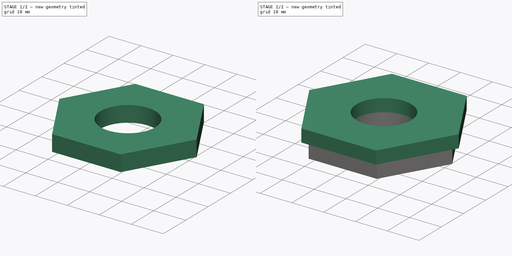
[diagram: build sequence overview — one tinted view per stage of 2, left to right]
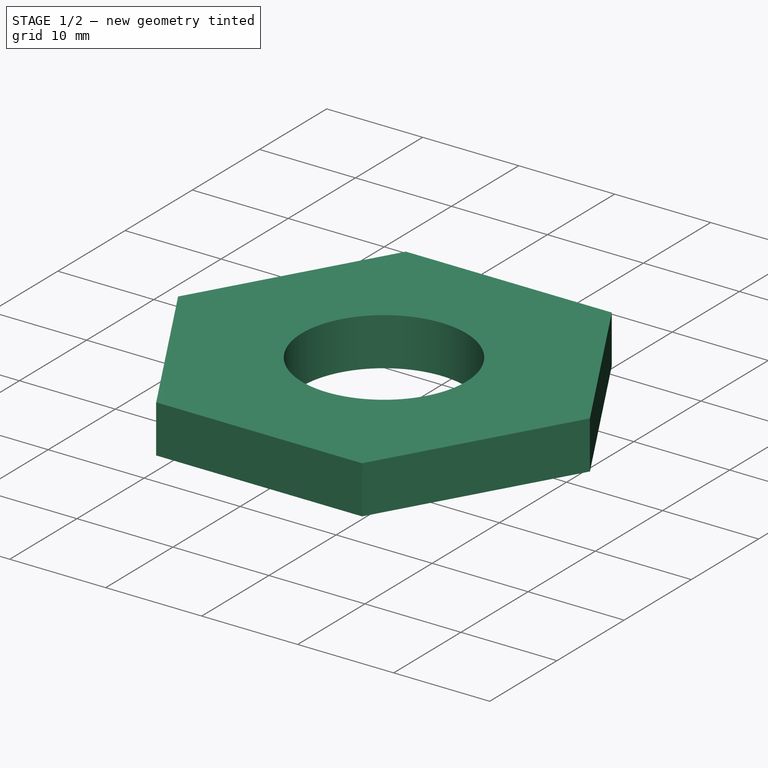
[diagram: stage 1 of 2 — iso view after this stage's code; geometry added in this stage tinted green]
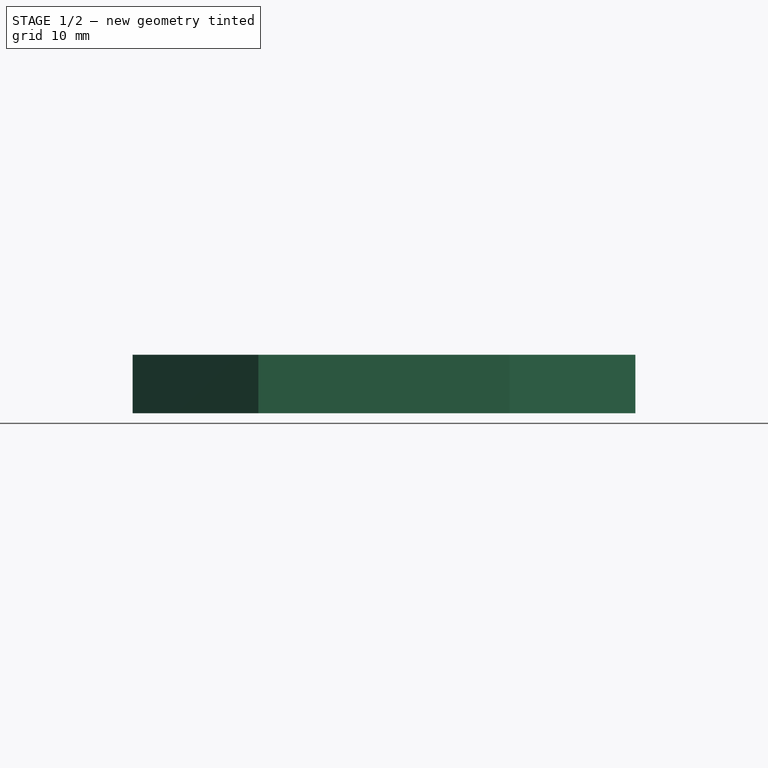
[diagram: stage 1 of 2 — front view after this stage's code; geometry added in this stage tinted green]
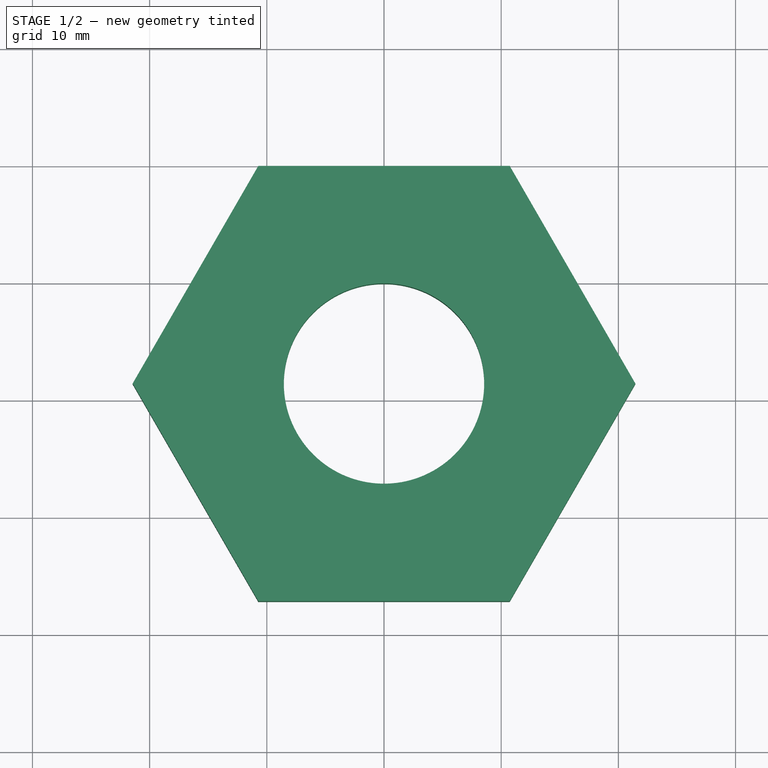
[diagram: stage 1 of 2 — top view after this stage's code; geometry added in this stage tinted green]
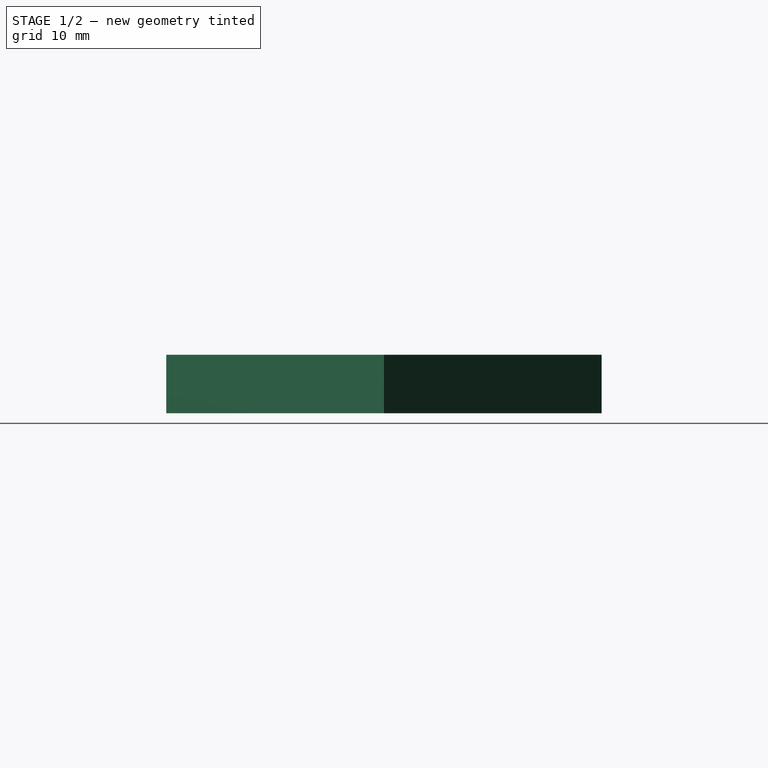
[diagram: stage 1 of 2 — right view after this stage's code; geometry added in this stage tinted green]
FCSTD DOCUMENT  (FreeCAD 0.22R38261 (Git))
Label: крышка в отцеп
License: All rights reserved
LicenseURL: https://en.wikipedia.org/wiki/All_rights_reserved
objects: Sketcher::SketchObject×2, PartDesign::Pad×2, PartDesign::Plane×1, PartDesign::Body×1, App::Part×1
note: 10 computed .brp shape members not serialized (recipe doc carries the construction recipe); baked Part::Feature solids carry a one-line shape summary decoded from their .brp

FEATURE [Sketcher::SketchObject] Sketch001
  AttachmentSupport = -> [XY_Plane001]
  FullyConstrained = false
  MapMode = 5
  sketch-geometry (9):
    g0: LineSegment StartX=21.45 StartY=-48.595 StartZ=0 EndX=10.725 EndY=-30.0188 EndZ=0
    g1: LineSegment StartX=10.725 StartY=-30.0188 StartZ=0 EndX=-10.725 EndY=-30.0188 EndZ=0
    g2: LineSegment StartX=-10.725 StartY=-30.0188 StartZ=0 EndX=-21.45 EndY=-48.595 EndZ=0
    g3: LineSegment StartX=-21.45 StartY=-48.595 StartZ=0 EndX=-10.725 EndY=-67.1713 EndZ=0
    g4: LineSegment StartX=-10.725 StartY=-67.1713 StartZ=0 EndX=10.725 EndY=-67.1713 EndZ=0
    g5: LineSegment StartX=10.725 StartY=-67.1713 StartZ=0 EndX=21.45 EndY=-48.595 EndZ=0
    g6: Circle CenterX=9e-16 CenterY=-48.595 CenterZ=0 NormalX=0 NormalY=0 NormalZ=1 AngleXU=0 Radius=21.45
    g7: GeomPoint X=0 Y=-30.0188 Z=0
    g8: Circle CenterX=9e-16 CenterY=-48.595 CenterZ=0 NormalX=0 NormalY=0 NormalZ=1 AngleXU=0 Radius=8.55
  constraints (19):
    c: Coincident(g0,g1)
    c: Coincident(g1,g2)
    c: Coincident(g2,g3)
    c: Coincident(g3,g4)
    c: Coincident(g4,g5)
    c: Coincident(g5,g0)
    c: Equal(g0, g1-g5) x5
    c: PointOnObject(g0,g6)
    c: PointOnObject(g1,g6)
    c: PointOnObject(g2,g6)
    c: PointOnObject(g3,g6)
    c: PointOnObject(g4,g6)
    c: PointOnObject(g5,g6)
    c: Horizontal(g1)
    c: PointOnObject(g7,g-2)
    c: Symmetric(g1,g0,g7)
    c: Diameter(g6) = 42.9
    c: Diameter(g8) = 17.1
    c: Coincident(g8,g6)
FEATURE [PartDesign::Pad] Pad001
  Direction = (0,0,1)
  Length = 5
  Length2 = 10
  Profile = -> Sketch001
  ReferenceAxis = -> Sketch001 [N_Axis]
  Suppressed = false
  Type = 0
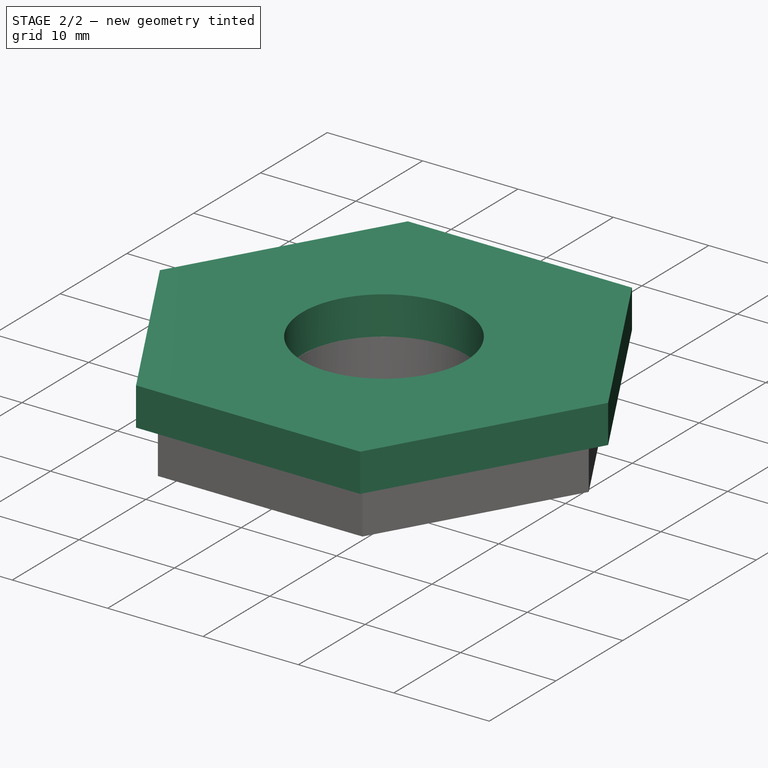
[diagram: stage 2 of 2 — iso view after this stage's code; geometry added in this stage tinted green]
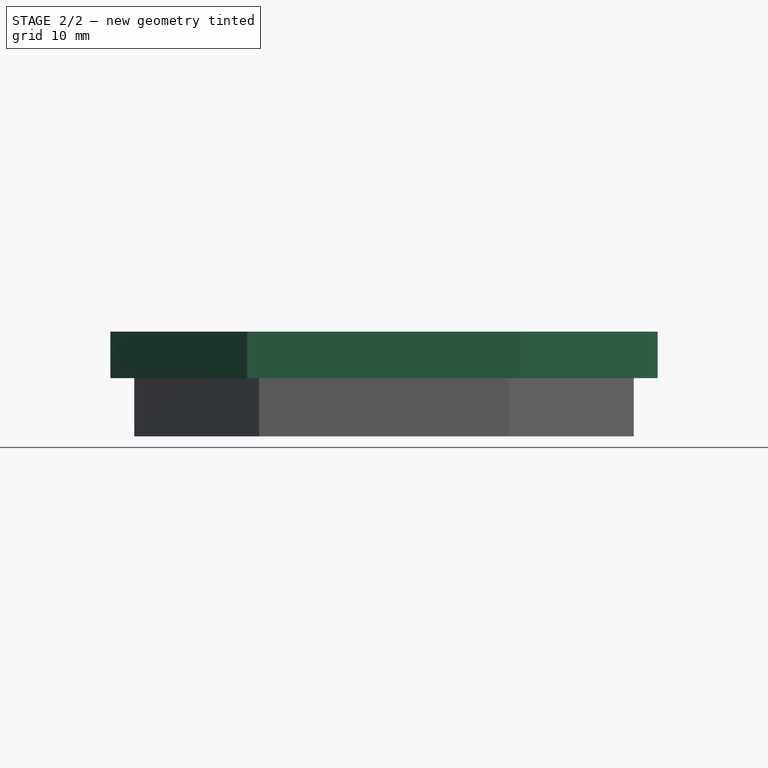
[diagram: stage 2 of 2 — front view after this stage's code; geometry added in this stage tinted green]
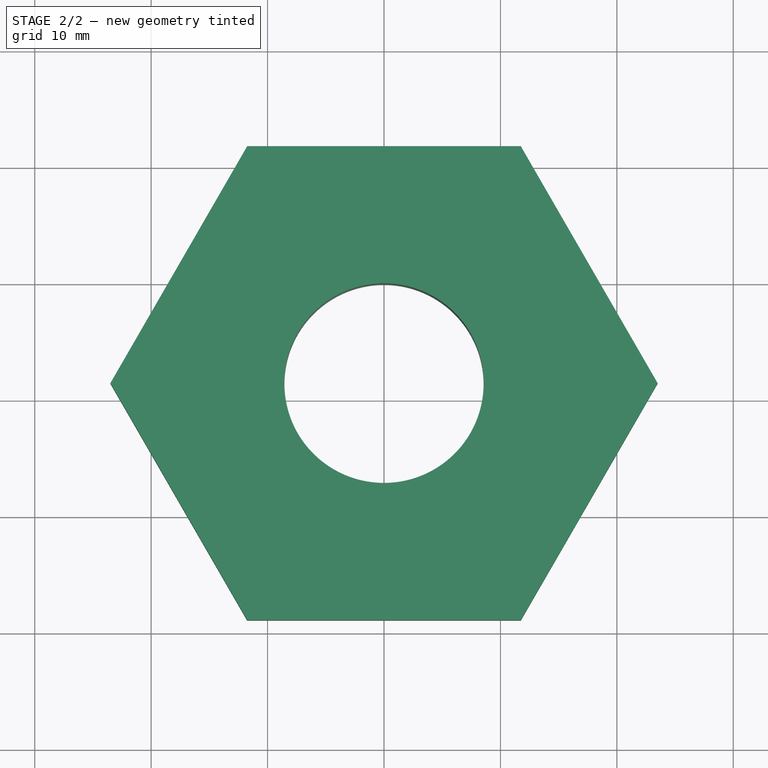
[diagram: stage 2 of 2 — top view after this stage's code; geometry added in this stage tinted green]
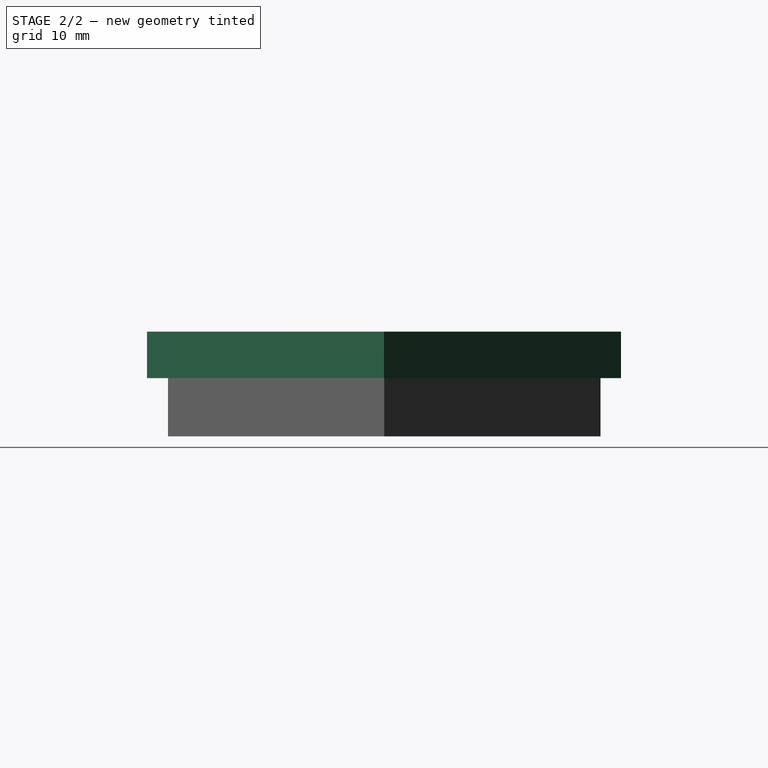
[diagram: stage 2 of 2 — right view after this stage's code; geometry added in this stage tinted green]
FEATURE [Sketcher::SketchObject] Sketch002
  ExternalGeometry = -> [Pad001]
  FullyConstrained = false
  MapMode = 5
  Placement = pos=(0,0,5) rot=(0,0,1;0rad)
  sketch-geometry (9):
    g0: GeomPoint X=1e-16 Y=-30 Z=0
    g1: LineSegment StartX=23.5 StartY=-48.6195 StartZ=0 EndX=11.75 EndY=-28.2679 EndZ=0
    g2: LineSegment StartX=11.75 StartY=-28.2679 StartZ=0 EndX=-11.75 EndY=-28.2679 EndZ=0
    g3: LineSegment StartX=-11.75 StartY=-28.2679 StartZ=0 EndX=-23.5 EndY=-48.6195 EndZ=0
    g4: LineSegment StartX=-23.5 StartY=-48.6195 StartZ=0 EndX=-11.75 EndY=-68.9711 EndZ=0
    g5: LineSegment StartX=-11.75 StartY=-68.9711 StartZ=0 EndX=11.75 EndY=-68.9711 EndZ=0
    g6: LineSegment StartX=11.75 StartY=-68.9711 StartZ=0 EndX=23.5 EndY=-48.6195 EndZ=0
    g7: Circle CenterX=1.5e-15 CenterY=-48.6195 CenterZ=0 NormalX=0 NormalY=0 NormalZ=1 AngleXU=0 Radius=23.5
    g8: Circle CenterX=1.5e-15 CenterY=-48.6195 CenterZ=0 NormalX=0 NormalY=0 NormalZ=1 AngleXU=0 Radius=8.57451
  constraints (16):
    c: PointOnObject(g0,g-2)
    c: Coincident(g1,g2)
    c: Coincident(g2,g3)
    c: Coincident(g3,g4)
    c: Coincident(g4,g5)
    c: Coincident(g5,g6)
    c: Coincident(g6,g1)
    c: Equal(g1, g2-g6) x5
    c: PointOnObject(g1,g7)
    c: PointOnObject(g2,g7)
    c: PointOnObject(g3,g7)
    c: PointOnObject(g4,g7)
    c: PointOnObject(g5,g7)
    c: PointOnObject(g6,g7)
    c: Diameter(g7) = 47
    c: Tangent(g8,g-3)
FEATURE [PartDesign::Plane] DatumPlane
  AttachmentSupport = -> [Pad001]
  Length = 63.5773
  MapMode = 5
  Placement = pos=(0,0,0) rot=(1,0,0;3.14159rad)
  ResizeMode = 0
  Width = 105.749
FEATURE [PartDesign::Pad] Pad
  BaseFeature = -> Pad001
  Direction = (0,0,1)
  Length = 4
  Length2 = 10
  Profile = -> Sketch002
  ReferenceAxis = -> Sketch002 [N_Axis]
  Suppressed = false
  Type = 0
FEATURE [PartDesign::Body] Body
  AllowCompound = false
  Group = -> [Sketch001,Pad001,Sketch002,DatumPlane,Pad]
  Origin = -> Origin001
  Tip = -> Pad
FEATURE [App::Part] Part
  Group = -> [Body]
  Origin = -> Origin
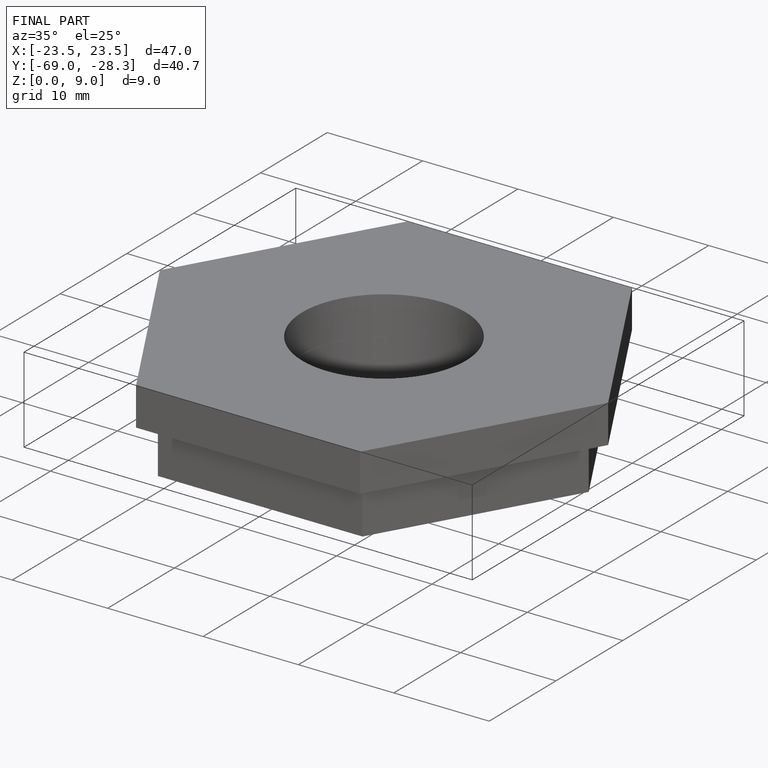
[diagram: finished part — iso view with bounding-box wireframe]
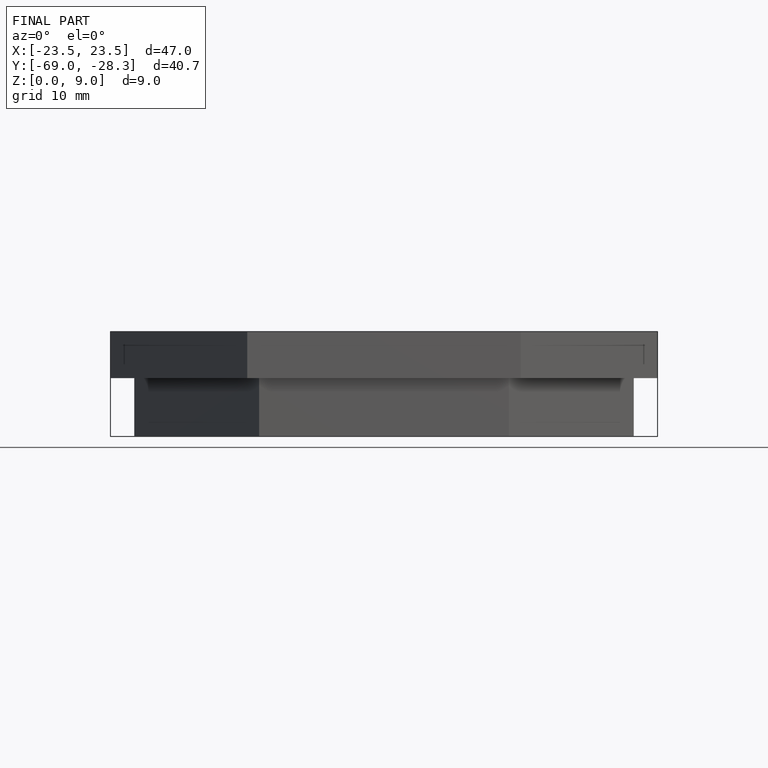
[diagram: finished part — front view with bounding-box wireframe]
